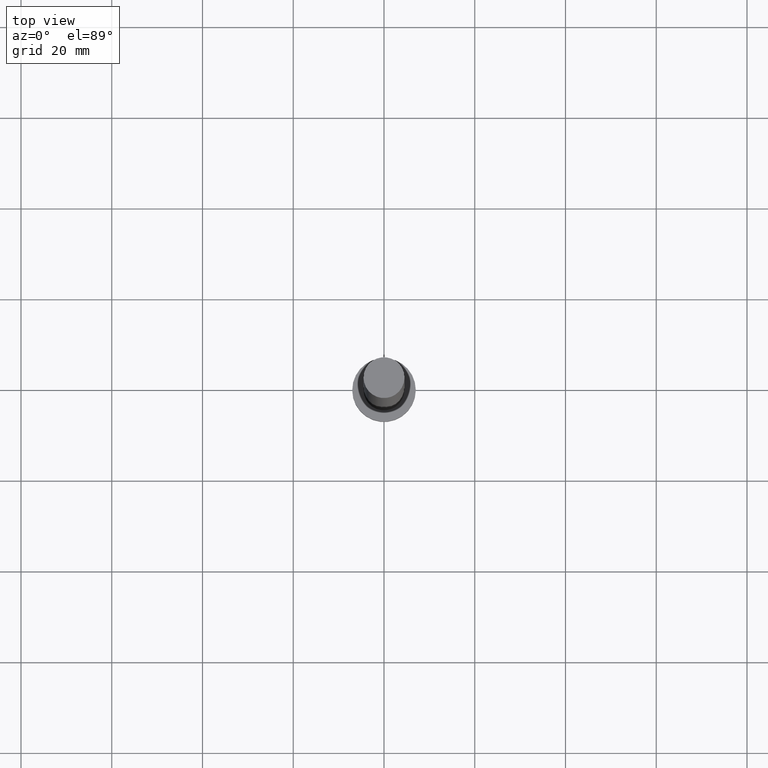
[diagram: clean part render]
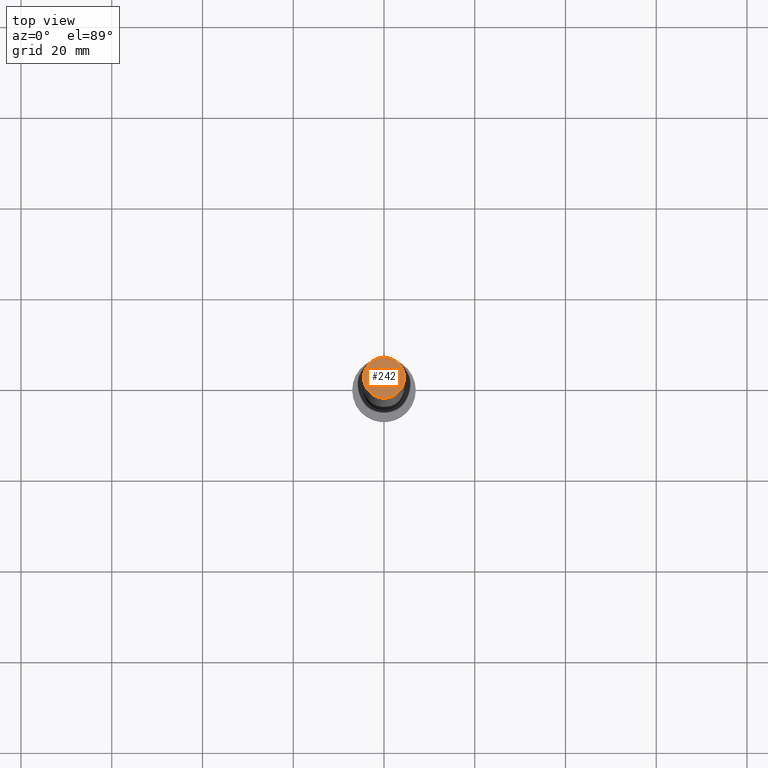
[diagram: same view with one face highlighted and labeled with its STEP entity id]
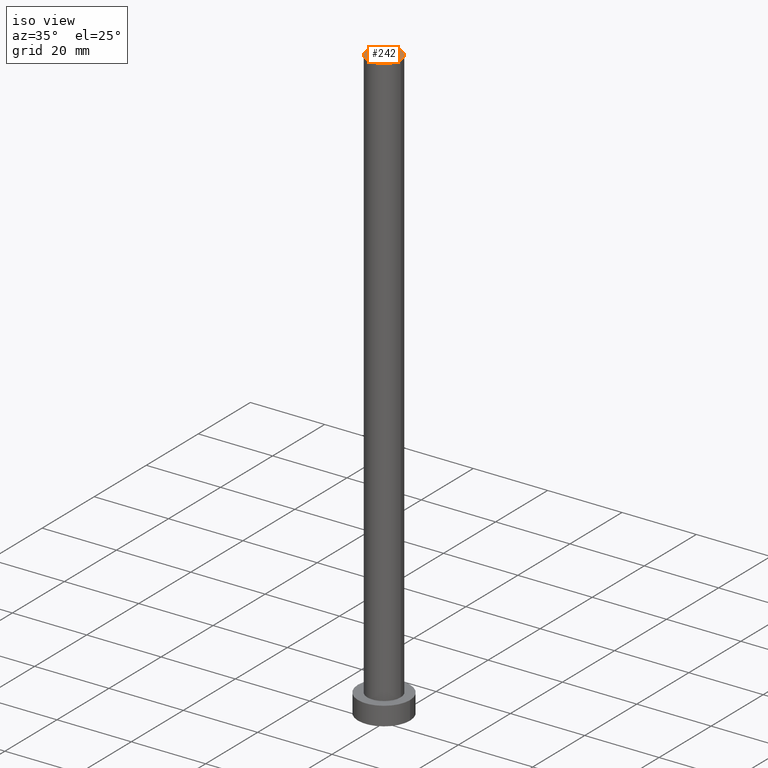
[diagram: same view with one face highlighted and labeled with its STEP entity id]
A machine part, top view. The second image highlights one B-rep face of the part: STEP entity #242.
A second angle (iso view) of the same face is appended — the face is thin or edge-on in the first view.
In plain terms, the highlighted planar face has unit normal (0, 0, 1).
Its self-contained STEP definition (entity closure, byte-faithful):
#6 = VERTEX_POINT ( 'NONE', #40 ) ;
#10 = AXIS2_PLACEMENT_3D ( 'NONE', #213, #64, #211 ) ;
#17 = EDGE_CURVE ( 'NONE', #237, #6, #222, .T. ) ;
#24 = DIRECTION ( 'NONE',  ( 1.000000000000000000, 0.000000000000000000, 0.000000000000000000 ) ) ;
#39 = FACE_OUTER_BOUND ( 'NONE', #238, .T. ) ;
#40 = CARTESIAN_POINT ( 'NONE',  ( 4.500000000000000000, 5.510910596163088569E-16, 160.0000000000000000 ) ) ;
#62 = PLANE ( 'NONE',  #10 ) ;
#63 = CIRCLE ( 'NONE', #128, 4.500000000000000000 ) ;
#64 = DIRECTION ( 'NONE',  ( 0.000000000000000000, 0.000000000000000000, 1.000000000000000000 ) ) ;
#67 = DIRECTION ( 'NONE',  ( 1.000000000000000000, 0.000000000000000000, 0.000000000000000000 ) ) ;
#128 = AXIS2_PLACEMENT_3D ( 'NONE', #197, #176, #24 ) ;
#135 = EDGE_CURVE ( 'NONE', #6, #237, #63, .T. ) ;
#137 = ORIENTED_EDGE ( 'NONE', *, *, #135, .T. ) ;
#146 = DIRECTION ( 'NONE',  ( 0.000000000000000000, 0.000000000000000000, 1.000000000000000000 ) ) ;
#149 = CARTESIAN_POINT ( 'NONE',  ( 0.000000000000000000, 0.000000000000000000, 160.0000000000000000 ) ) ;
#176 = DIRECTION ( 'NONE',  ( 0.000000000000000000, 0.000000000000000000, 1.000000000000000000 ) ) ;
#181 = ORIENTED_EDGE ( 'NONE', *, *, #17, .T. ) ;
#190 = CARTESIAN_POINT ( 'NONE',  ( -4.500000000000000000, 0.000000000000000000, 160.0000000000000000 ) ) ;
#197 = CARTESIAN_POINT ( 'NONE',  ( 0.000000000000000000, 0.000000000000000000, 160.0000000000000000 ) ) ;
#211 = DIRECTION ( 'NONE',  ( 1.000000000000000000, 0.000000000000000000, -0.000000000000000000 ) ) ;
#213 = CARTESIAN_POINT ( 'NONE',  ( 0.000000000000000000, 0.000000000000000000, 160.0000000000000000 ) ) ;
#222 = CIRCLE ( 'NONE', #227, 4.500000000000000000 ) ;
#227 = AXIS2_PLACEMENT_3D ( 'NONE', #149, #146, #67 ) ;
#237 = VERTEX_POINT ( 'NONE', #190 ) ;
#238 = EDGE_LOOP ( 'NONE', ( #181, #137 ) ) ;
#242 = ADVANCED_FACE ( 'NONE', ( #39 ), #62, .T. ) ;